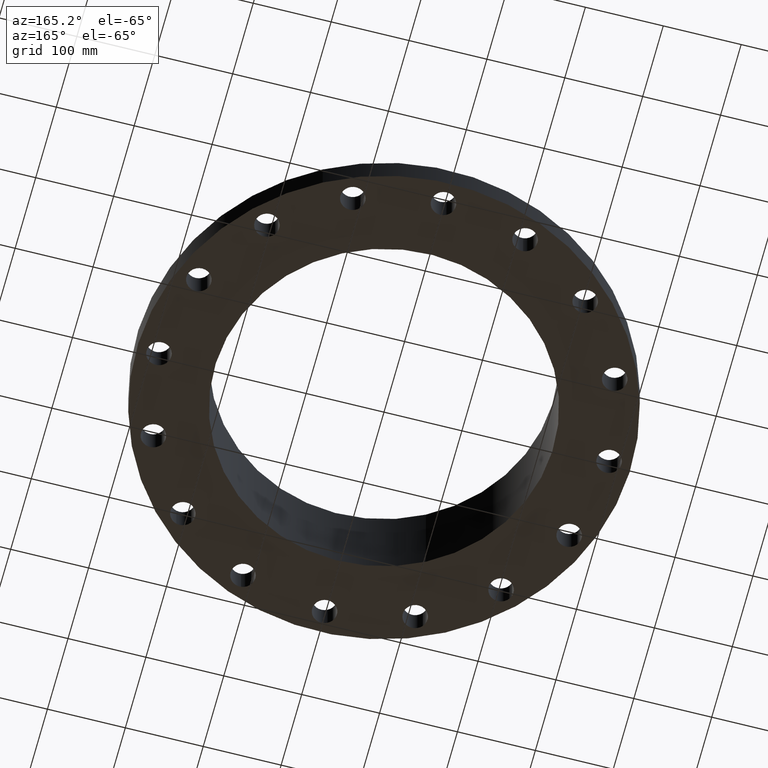
[diagram: clean part render]
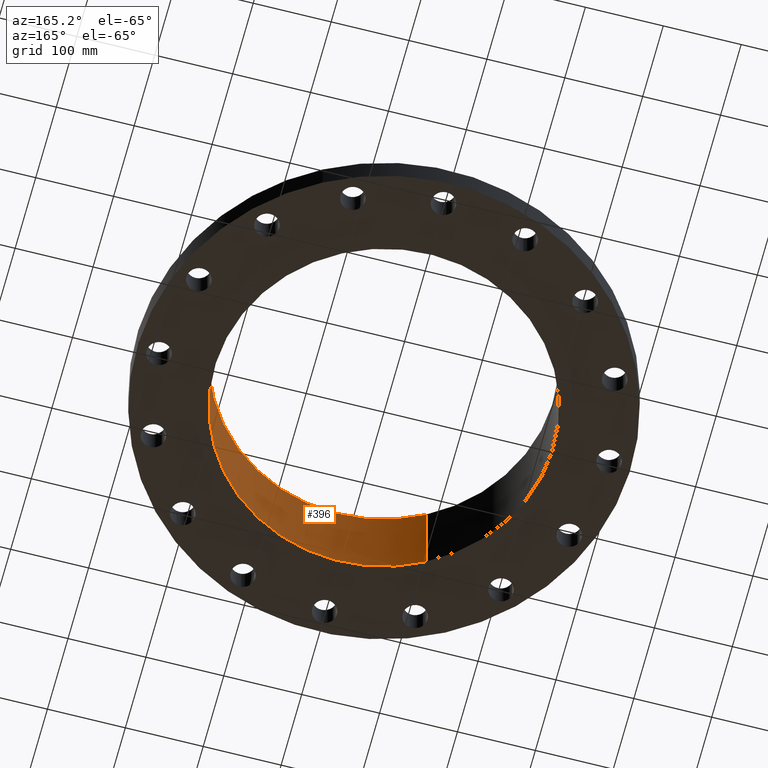
[diagram: same view with one face highlighted and labeled with its STEP entity id]
A machine part, auxiliary view. The second image highlights one B-rep face of the part: STEP entity #396.
In plain terms, the highlighted cylindrical surface (partial cylindrical patch) has radius 217.475 mm, axis along (0, 0, -1).
Its self-contained STEP definition (entity closure, byte-faithful):
#343=AXIS2_PLACEMENT_3D('Cylinder Axis2P3D',#340,#341,#342) ;
#382=AXIS2_PLACEMENT_3D('Circle Axis2P3D',#380,#381,$) ;
#387=AXIS2_PLACEMENT_3D('Circle Axis2P3D',#385,#386,$) ;
#340=CARTESIAN_POINT('Axis2P3D Location',(0.,0.,2.72000000001)) ;
#349=CARTESIAN_POINT('Vertex',(-4.10484146155,-7.51386189494,5.44000000002)) ;
#351=CARTESIAN_POINT('Vertex',(4.10484146155,7.51386189494,5.44000000002)) ;
#354=CARTESIAN_POINT('Line Origine',(-4.10484146155,-7.51386189494,2.72000000001)) ;
#358=CARTESIAN_POINT('Vertex',(-4.10484146155,-7.51386189494,-4.97939397501E-014)) ;
#365=CARTESIAN_POINT('Vertex',(4.10484146155,7.51386189494,-4.97939397501E-014)) ;
#368=CARTESIAN_POINT('Line Origine',(4.10484146155,7.51386189494,2.72000000001)) ;
#380=CARTESIAN_POINT('Axis2P3D Location',(0.,0.,5.44000000002)) ;
#385=CARTESIAN_POINT('Axis2P3D Location',(0.,0.,-5.03534222192E-014)) ;
#341=DIRECTION('Axis2P3D Direction',(0.,0.,-0.0393700787402)) ;
#342=DIRECTION('Axis2P3D XDirection',(0.0188750212049,0.0345504945626,0.)) ;
#355=DIRECTION('Vector Direction',(0.,0.,-0.0393700787402)) ;
#369=DIRECTION('Vector Direction',(0.,0.,-0.0393700787402)) ;
#381=DIRECTION('Axis2P3D Direction',(0.,0.,-0.0393700787402)) ;
#386=DIRECTION('Axis2P3D Direction',(0.,0.,-0.0393700787402)) ;
#356=VECTOR('Line Direction',#355,0.0393700787402) ;
#370=VECTOR('Line Direction',#369,0.0393700787402) ;
#391=ORIENTED_EDGE('',*,*,#384,.F.) ;
#392=ORIENTED_EDGE('',*,*,#372,.T.) ;
#393=ORIENTED_EDGE('',*,*,#389,.T.) ;
#394=ORIENTED_EDGE('',*,*,#360,.F.) ;
#396=ADVANCED_FACE('PartBody',(#395),#344,.F.) ;
#383=CIRCLE('generated circle',#382,8.56200000003) ;
#388=CIRCLE('generated circle',#387,8.56200000003) ;
#344=CYLINDRICAL_SURFACE('generated cylinder',#343,8.56200000003) ;
#360=EDGE_CURVE('',#350,#359,#357,.T.) ;
#372=EDGE_CURVE('',#352,#366,#371,.T.) ;
#384=EDGE_CURVE('',#352,#350,#383,.T.) ;
#389=EDGE_CURVE('',#366,#359,#388,.T.) ;
#390=EDGE_LOOP('',(#391,#392,#393,#394)) ;
#395=FACE_OUTER_BOUND('',#390,.T.) ;
#357=LINE('Line',#354,#356) ;
#371=LINE('Line',#368,#370) ;
#350=VERTEX_POINT('',#349) ;
#352=VERTEX_POINT('',#351) ;
#359=VERTEX_POINT('',#358) ;
#366=VERTEX_POINT('',#365) ;